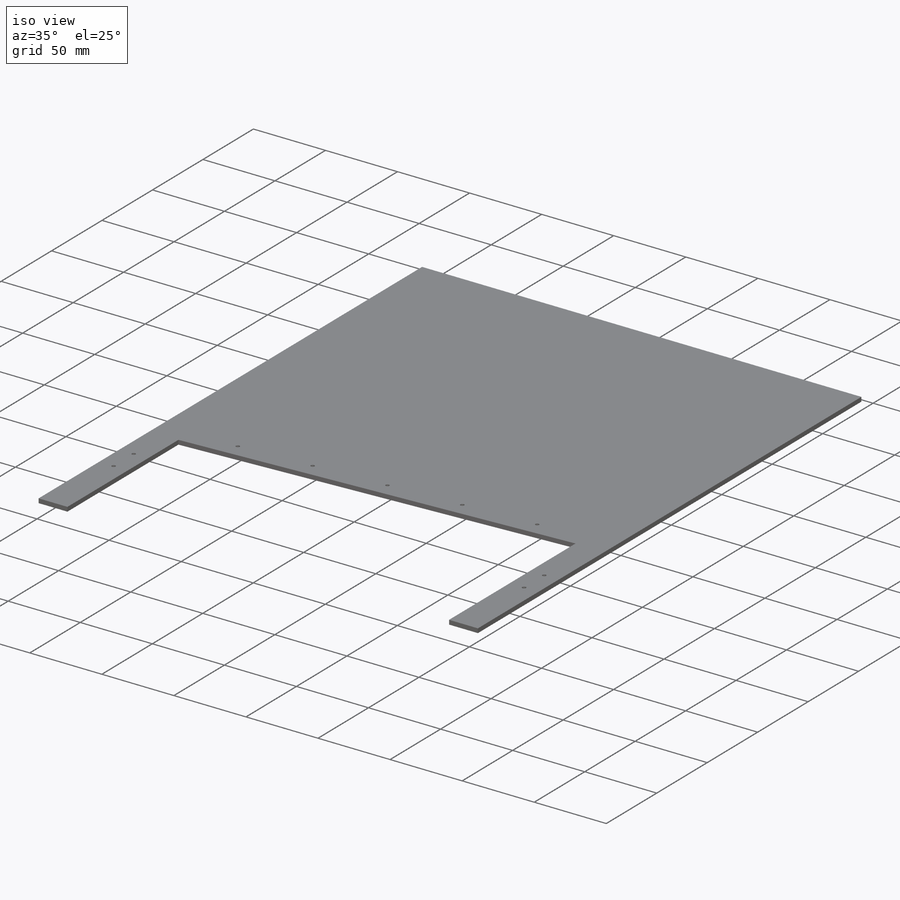
[diagram: iso view]
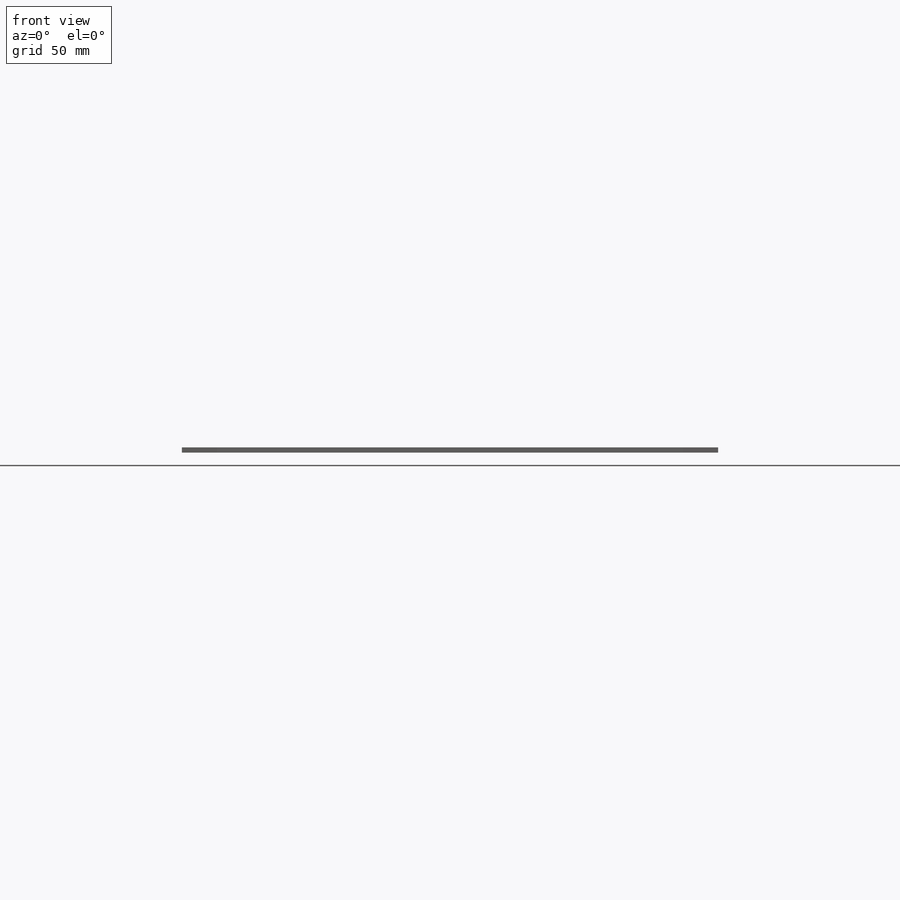
[diagram: front view]
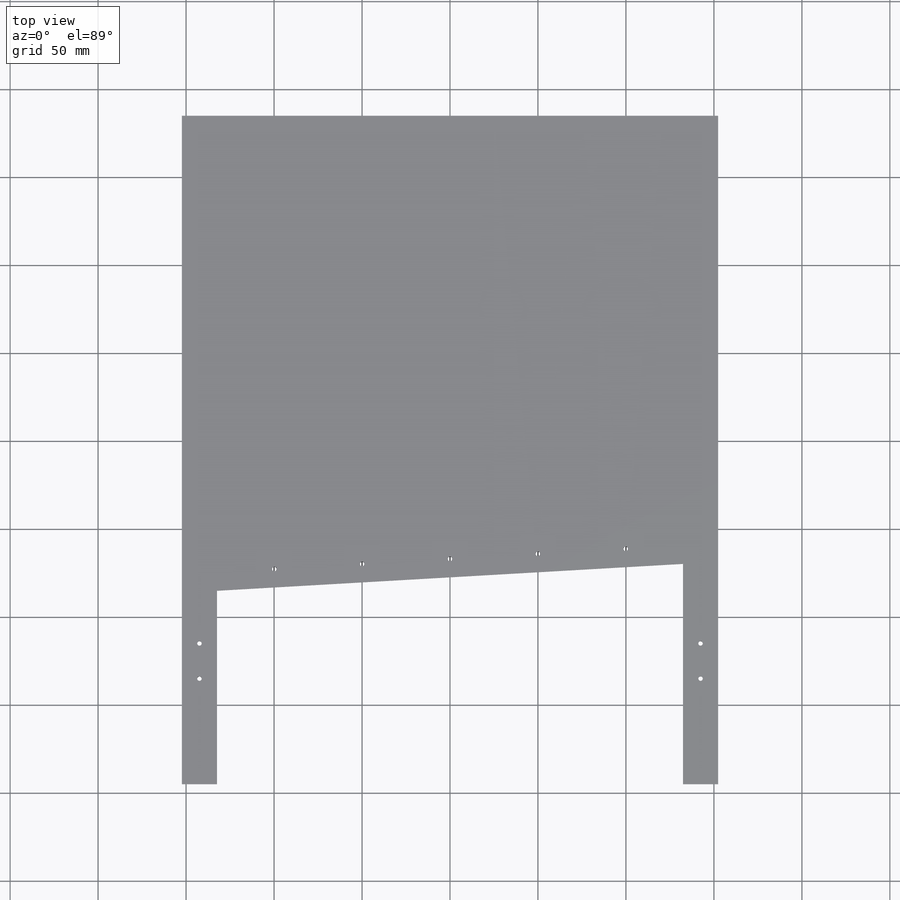
[diagram: top view]
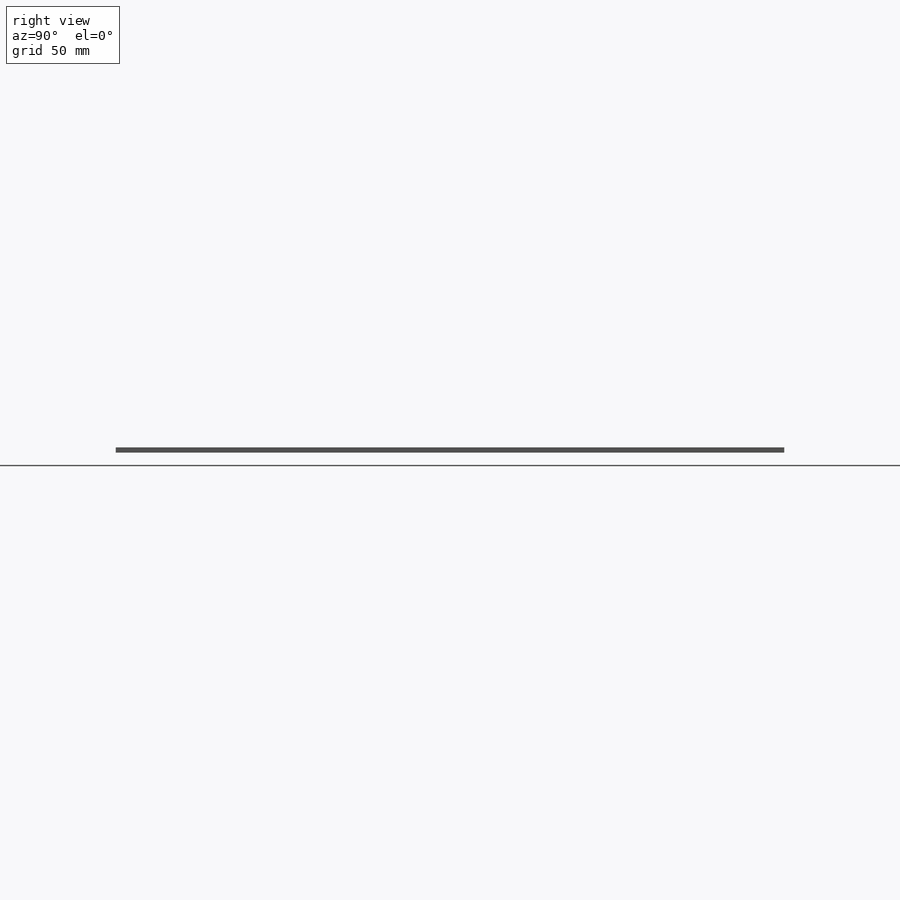
[diagram: right view]
SOLIDWORKS PART (.sldprt)
format: sldprt  version: not decoded by parser v0  size: 257,536 bytes
history: native  units: mm
features: thread x9, sketch x5, hole x2, material x1, extrude x1 (+11 scaffold rows collapsed)
feature tree (29):
  scaffold x11  (default folders/planes/origin — collapsed)
  material  "6061 Alloy"
  sketch  "Sketch1"  dims[c1.D1=304.8mm c1.D2=270.0mm c1.D3=~305.365538mm c2.D3=~3.301866deg c3.D3=110.0mm c3.D4=110.0mm c3.D5=20.0mm c3.D6=20.0mm c3.D7=~265.427582mm c4.D7=~3.301866deg]
  extrude  "Boss-Extrude1"  Depth=3mm
  hole  "Brush Holder Mounting Holes"  Diameter=2.5mm Depth=7.5mm
  sketch  "Sketch3"  dims[D1=10.4mm D2=50.0mm D3=100.0mm D4=50.0mm D5=100.0mm]
  sketch  "Sketch2"  dims[hole-wizard template sketch: 50 standard entries collapsed; hole parameters above]
  thread  "Hole Thread1"  Diameter=3mm  [1 undecoded]
  thread  "Hole Thread2"  Diameter=3mm  [1 undecoded]
  thread  "Hole Thread3"  Diameter=3mm  [1 undecoded]
  thread  "Hole Thread4"  Diameter=3mm  [1 undecoded]
  thread  "Hole Thread5"  Diameter=3mm  [1 undecoded]
  hole  "Omni-Bearing Holes"  Diameter=2.5mm Depth=7.5mm
  sketch  "Sketch5"  dims[D1=20.0mm D2=20.0mm D3=10.0mm D4=10.0mm D5=300.0mm D6=300.0mm]
  sketch  "Sketch4"  dims[hole-wizard template sketch: 50 standard entries collapsed; hole parameters above]
  thread  "Hole Thread6"  Diameter=3mm  [1 undecoded]
  thread  "Hole Thread7"  Diameter=3mm  [1 undecoded]
  thread  "Hole Thread8"  Diameter=3mm  [1 undecoded]
  thread  "Hole Thread9"  Diameter=3mm  [1 undecoded]
decode coverage: 17 of 17 modeling features carry decoded parameters
note: ~ marks probable driven/reference dimensions
note: 9 parameter values undecoded
note: suppression state not decoded; provenance and decode notes live in map.json
